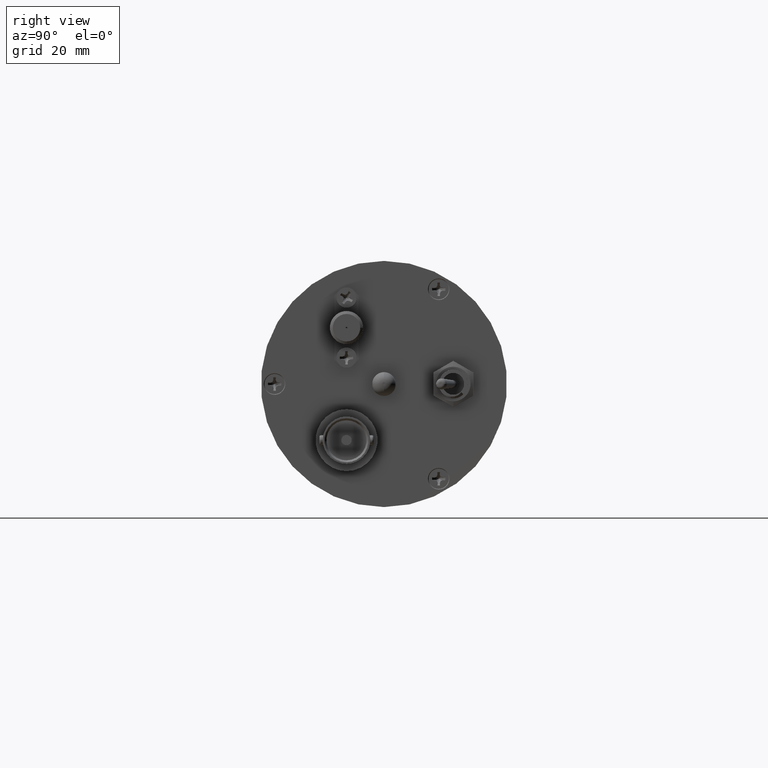
[diagram: clean part render]
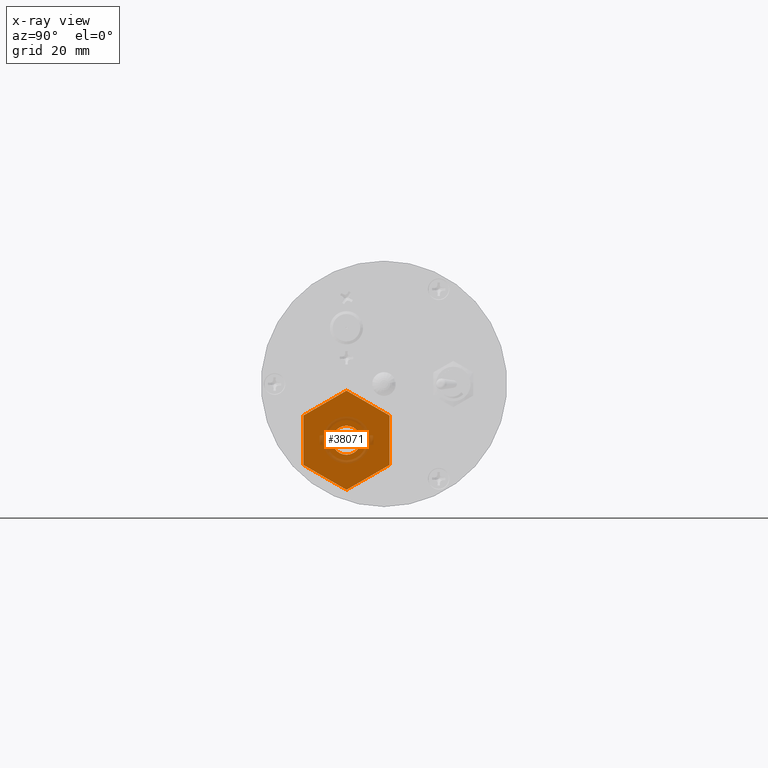
[diagram: x-ray — body ghosted, one internal face saturated and labeled with its STEP entity id]
A machine part, right view, then the same camera in x-ray: the body is ghosted and one INTERNAL B-rep face — a face not visible from any outside direction — is saturated and labeled: STEP entity #38071.
In plain terms, the highlighted planar face has unit normal (1, -0, -0).
Its self-contained STEP definition (entity closure, byte-faithful):
#330 = ORIENTED_EDGE ( 'NONE', *, *, #5763, .F. ) ;
#1465 = CARTESIAN_POINT ( 'NONE',  ( 45.21700839963394700, 18.44368904316284500, 30.23622278598549300 ) ) ;
#1725 = CARTESIAN_POINT ( 'NONE',  ( 45.21700839963394700, 18.44368904316375800, 25.19889942233091400 ) ) ;
#3020 = EDGE_CURVE ( 'NONE', #14187, #8967, #4465, .T. ) ;
#3646 = LINE ( 'NONE', #1725, #37960 ) ;
#3800 = ORIENTED_EDGE ( 'NONE', *, *, #3020, .F. ) ;
#4159 = VERTEX_POINT ( 'NONE', #5508 ) ;
#4292 = VERTEX_POINT ( 'NONE', #95826 ) ;
#4465 = LINE ( 'NONE', #89713, #70473 ) ;
#5508 = CARTESIAN_POINT ( 'NONE',  ( 45.21700839963394700, 27.16858904316375600, 22.25249942233091400 ) ) ;
#5704 = CARTESIAN_POINT ( 'NONE',  ( 45.21700839963394700, 27.16858904316375600, 25.19889942233091400 ) ) ;
#5763 = EDGE_CURVE ( 'NONE', #4159, #21436, #81540, .T. ) ;
#6705 = CARTESIAN_POINT ( 'NONE',  ( 45.21700839963394700, 35.89348904316467800, 20.16157605867633500 ) ) ;
#7789 = LINE ( 'NONE', #93481, #9145 ) ;
#8967 = VERTEX_POINT ( 'NONE', #6705 ) ;
#9145 = VECTOR ( 'NONE', #92779, 1000.000000000000000 ) ;
#10410 = DIRECTION ( 'NONE',  ( 1.000000000000000000, -2.775557561562890100E-017, -2.244875738407634100E-033 ) ) ;
#14187 = VERTEX_POINT ( 'NONE', #101625 ) ;
#16954 = CARTESIAN_POINT ( 'NONE',  ( 45.21700839963394700, 18.44368904316375800, 20.16157605867791200 ) ) ;
#17235 = DIRECTION ( 'NONE',  ( -1.000000000000000000, 2.775557561562890100E-017, -1.683656803805726100E-033 ) ) ;
#18898 = DIRECTION ( 'NONE',  ( -1.683656803805726100E-033, 2.022004307797137000E-017, -1.000000000000000000 ) ) ;
#20495 = ORIENTED_EDGE ( 'NONE', *, *, #93777, .F. ) ;
#21436 = VERTEX_POINT ( 'NONE', #55088 ) ;
#22489 = CARTESIAN_POINT ( 'NONE',  ( 45.21700839963394700, 35.89348904316376800, 25.19889942233091400 ) ) ;
#25715 = VERTEX_POINT ( 'NONE', #1465 ) ;
#25809 = EDGE_CURVE ( 'NONE', #4292, #25715, #96539, .T. ) ;
#26943 = CARTESIAN_POINT ( 'NONE',  ( 45.21700839963394700, 27.16858904316375600, 35.27354614964091400 ) ) ;
#27319 = FACE_OUTER_BOUND ( 'NONE', #87131, .T. ) ;
#29766 = CIRCLE ( 'NONE', #83641, 2.946399999999998400 ) ;
#30509 = DIRECTION ( 'NONE',  ( -1.000000000000000000, 2.775557561562890100E-017, -1.683656803805726100E-033 ) ) ;
#32831 = EDGE_LOOP ( 'NONE', ( #330, #20495 ) ) ;
#35124 = DIRECTION ( 'NONE',  ( -2.403703357978926900E-017, -0.8660254037842480800, -0.5000000000003300700 ) ) ;
#37333 = VECTOR ( 'NONE', #39506, 1000.000000000000000 ) ;
#37960 = VECTOR ( 'NONE', #49901, 1000.000000000000000 ) ;
#38071 = ADVANCED_FACE ( 'NONE', ( #52593, #27319 ), #50087, .F. ) ;
#39506 = DIRECTION ( 'NONE',  ( 1.683656803805726100E-033, -2.022004307797137000E-017, 1.000000000000000000 ) ) ;
#41050 = VECTOR ( 'NONE', #93407, 1000.000000000000000 ) ;
#43816 = CARTESIAN_POINT ( 'NONE',  ( 45.21700839963394700, 35.89348904316376800, 30.23622278598391200 ) ) ;
#49901 = DIRECTION ( 'NONE',  ( -1.683656803805726100E-033, 2.022004307797137000E-017, -1.000000000000000000 ) ) ;
#50087 = PLANE ( 'NONE',  #83796 ) ;
#50569 = VERTEX_POINT ( 'NONE', #55167 ) ;
#51442 = CARTESIAN_POINT ( 'NONE',  ( 45.21700839963394700, 27.16858904316375600, 25.19889942233091400 ) ) ;
#52593 = FACE_BOUND ( 'NONE', #32831, .T. ) ;
#53706 = ORIENTED_EDGE ( 'NONE', *, *, #25809, .F. ) ;
#53928 = EDGE_CURVE ( 'NONE', #8967, #50569, #91825, .T. ) ;
#55088 = CARTESIAN_POINT ( 'NONE',  ( 45.21700839963394700, 27.16858904316375600, 28.14529942233091500 ) ) ;
#55167 = CARTESIAN_POINT ( 'NONE',  ( 45.21700839963394700, 35.89348904316376800, 30.23622278598391200 ) ) ;
#56340 = EDGE_CURVE ( 'NONE', #98073, #14187, #7789, .T. ) ;
#57667 = CARTESIAN_POINT ( 'NONE',  ( 45.21700839963394700, 27.16858904316375600, 25.19889942233091400 ) ) ;
#65879 = DIRECTION ( 'NONE',  ( 0.0000000000000000000, 0.0000000000000000000, -1.000000000000000000 ) ) ;
#70309 = LINE ( 'NONE', #43816, #41050 ) ;
#70473 = VECTOR ( 'NONE', #88675, 1000.000000000000000 ) ;
#74082 = ORIENTED_EDGE ( 'NONE', *, *, #104375, .F. ) ;
#78068 = DIRECTION ( 'NONE',  ( 0.0000000000000000000, 0.0000000000000000000, -1.000000000000000000 ) ) ;
#79544 = ORIENTED_EDGE ( 'NONE', *, *, #56340, .F. ) ;
#80152 = AXIS2_PLACEMENT_3D ( 'NONE', #5704, #30509, #78068 ) ;
#81147 = ORIENTED_EDGE ( 'NONE', *, *, #94395, .F. ) ;
#81540 = CIRCLE ( 'NONE', #80152, 2.946399999999998400 ) ;
#83071 = ORIENTED_EDGE ( 'NONE', *, *, #53928, .F. ) ;
#83641 = AXIS2_PLACEMENT_3D ( 'NONE', #57667, #17235, #65879 ) ;
#83796 = AXIS2_PLACEMENT_3D ( 'NONE', #51442, #10410, #18898 ) ;
#86389 = VECTOR ( 'NONE', #35124, 1000.000000000000000 ) ;
#87131 = EDGE_LOOP ( 'NONE', ( #74082, #53706, #81147, #83071, #3800, #79544 ) ) ;
#88675 = DIRECTION ( 'NONE',  ( 2.403703357978926900E-017, 0.8660254037842480800, 0.5000000000003300700 ) ) ;
#89713 = CARTESIAN_POINT ( 'NONE',  ( 45.21700839963394700, 27.16858904316375600, 15.12425269502091400 ) ) ;
#91825 = LINE ( 'NONE', #22489, #37333 ) ;
#92779 = DIRECTION ( 'NONE',  ( 2.403703357978926900E-017, 0.8660254037842480800, -0.5000000000003300700 ) ) ;
#93407 = DIRECTION ( 'NONE',  ( -2.403703357978926900E-017, -0.8660254037842480800, 0.5000000000003300700 ) ) ;
#93481 = CARTESIAN_POINT ( 'NONE',  ( 45.21700839963394700, 18.44368904316375800, 20.16157605867791200 ) ) ;
#93777 = EDGE_CURVE ( 'NONE', #21436, #4159, #29766, .T. ) ;
#94395 = EDGE_CURVE ( 'NONE', #50569, #4292, #70309, .T. ) ;
#95826 = CARTESIAN_POINT ( 'NONE',  ( 45.21700839963394700, 27.16858904316284700, 35.27354614963933700 ) ) ;
#96539 = LINE ( 'NONE', #26943, #86389 ) ;
#98073 = VERTEX_POINT ( 'NONE', #16954 ) ;
#101625 = CARTESIAN_POINT ( 'NONE',  ( 45.21700839963394700, 27.16858904316421400, 15.12425269502170100 ) ) ;
#104375 = EDGE_CURVE ( 'NONE', #25715, #98073, #3646, .T. ) ;